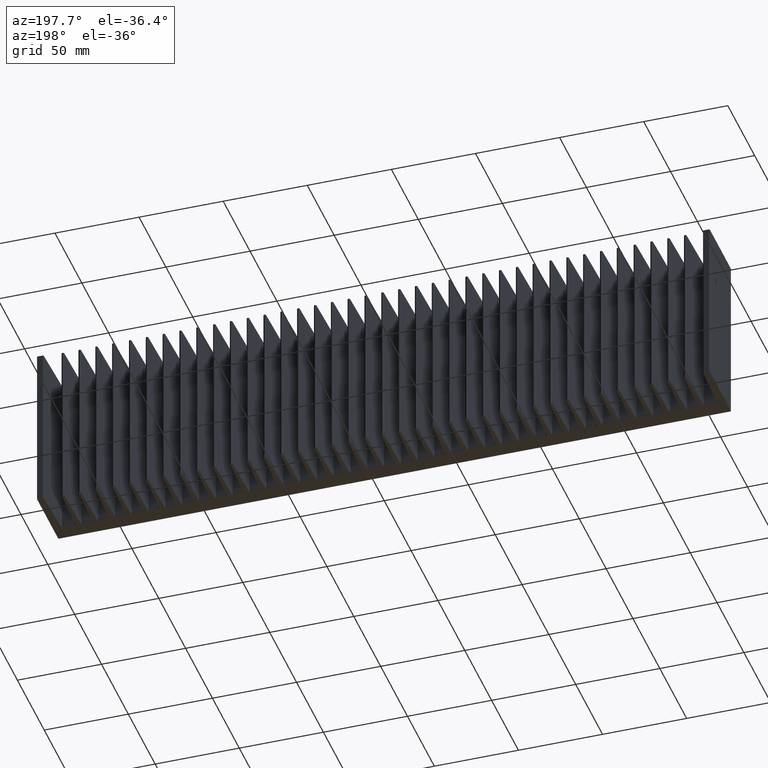
[diagram: clean part render]
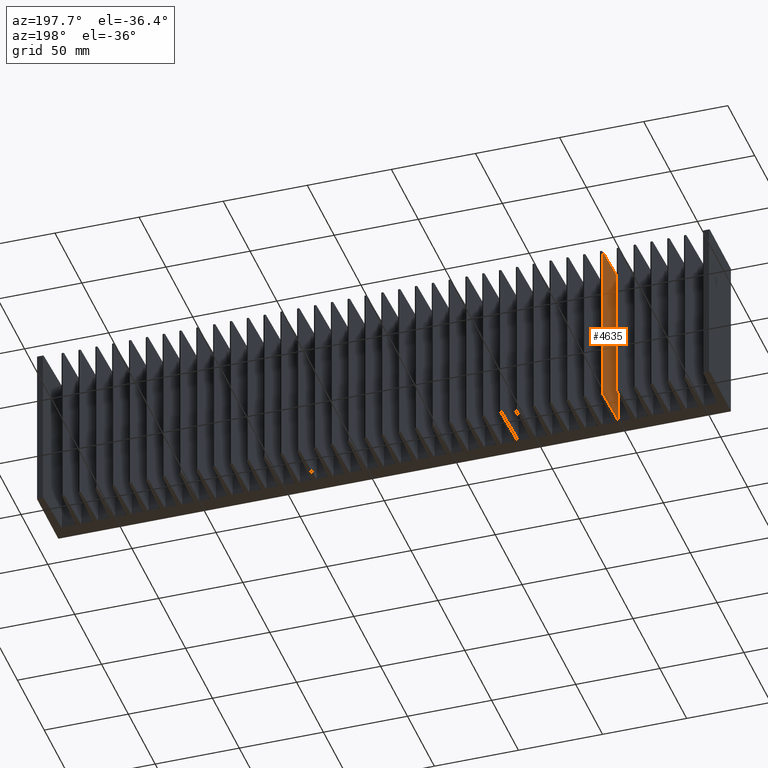
[diagram: same view with one face highlighted and labeled with its STEP entity id]
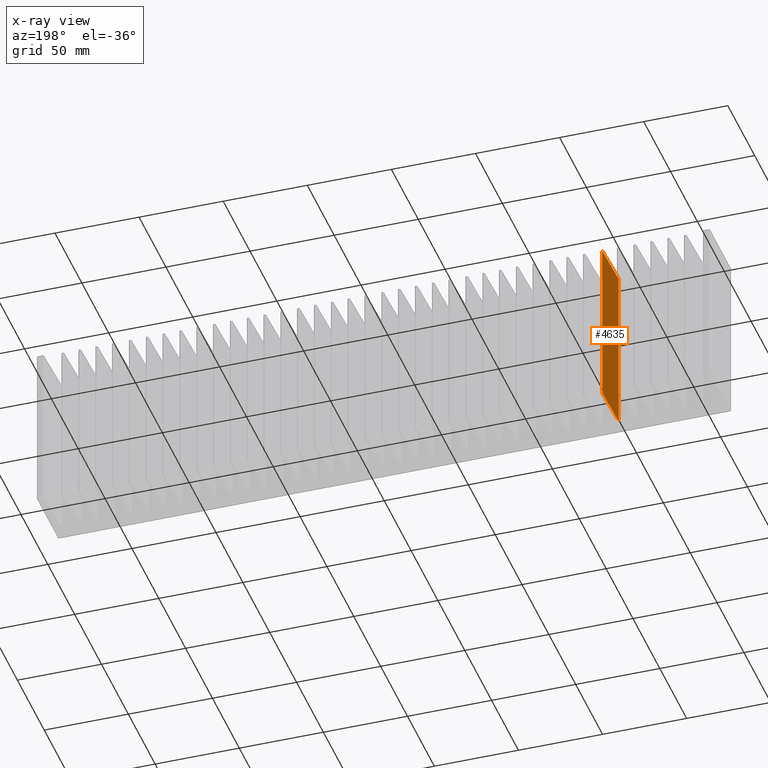
[diagram: x-ray of the same camera — body ghosted, the highlighted face saturated]
A machine part, auxiliary view. The second image highlights one B-rep face of the part: STEP entity #4635.
The next image is the same camera in x-ray: the body ghosted, the highlighted face saturated — about 0% of this face is hidden behind the body in this view.
In plain terms, the highlighted planar face has unit normal (0.9997, -0.0258, 0).
Its self-contained STEP definition (entity closure, byte-faithful):
#107 = DIRECTION ( 'NONE',  ( -0.02580036738941401259, -0.9996671151151123036, -0.000000000000000000 ) ) ;
#654 = CARTESIAN_POINT ( 'NONE',  ( 102.9786726045177971, 174.0035759821427916, 100.0000000000000000 ) ) ;
#1254 = AXIS2_PLACEMENT_3D ( 'NONE', #5030, #1805, #5197 ) ;
#1276 = ORIENTED_EDGE ( 'NONE', *, *, #7212, .F. ) ;
#1340 = VERTEX_POINT ( 'NONE', #654 ) ;
#1805 = DIRECTION ( 'NONE',  ( 0.9996671151151123036, -0.02580036738941401606, 0.000000000000000000 ) ) ;
#1814 = LINE ( 'NONE', #5203, #4633 ) ;
#2156 = ORIENTED_EDGE ( 'NONE', *, *, #8275, .T. ) ;
#2631 = LINE ( 'NONE', #5224, #3127 ) ;
#3108 = LINE ( 'NONE', #6222, #4780 ) ;
#3127 = VECTOR ( 'NONE', #5821, 1000.000000000000000 ) ;
#3296 = VECTOR ( 'NONE', #107, 1000.000000000000114 ) ;
#3480 = ORIENTED_EDGE ( 'NONE', *, *, #6182, .T. ) ;
#3921 = VERTEX_POINT ( 'NONE', #5223 ) ;
#4068 = LINE ( 'NONE', #7898, #3296 ) ;
#4100 = VERTEX_POINT ( 'NONE', #8008 ) ;
#4554 = PLANE ( 'NONE',  #1254 ) ;
#4596 = ORIENTED_EDGE ( 'NONE', *, *, #5713, .F. ) ;
#4633 = VECTOR ( 'NONE', #8409, 1000.000000000000114 ) ;
#4635 = ADVANCED_FACE ( 'NONE', ( #5792 ), #4554, .F. ) ;
#4780 = VECTOR ( 'NONE', #6979, 1000.000000000000000 ) ;
#5030 = CARTESIAN_POINT ( 'NONE',  ( 102.9786726045177971, 174.0035759821427916, 100.0000000000000000 ) ) ;
#5197 = DIRECTION ( 'NONE',  ( 0.02580036738941401606, 0.9996671151151123036, 0.000000000000000000 ) ) ;
#5203 = CARTESIAN_POINT ( 'NONE',  ( 102.9786726045177971, 174.0035759821427916, 100.0000000000000000 ) ) ;
#5223 = CARTESIAN_POINT ( 'NONE',  ( 103.6957035620411887, 201.7858264414805944, 0.000000000000000000 ) ) ;
#5224 = CARTESIAN_POINT ( 'NONE',  ( 103.6957035620411887, 201.7858264414805944, 100.0000000000000000 ) ) ;
#5713 = EDGE_CURVE ( 'NONE', #4100, #1340, #1814, .T. ) ;
#5792 = FACE_OUTER_BOUND ( 'NONE', #7858, .T. ) ;
#5821 = DIRECTION ( 'NONE',  ( -0.000000000000000000, -0.000000000000000000, -1.000000000000000000 ) ) ;
#6046 = VERTEX_POINT ( 'NONE', #7675 ) ;
#6182 = EDGE_CURVE ( 'NONE', #4100, #3921, #2631, .T. ) ;
#6222 = CARTESIAN_POINT ( 'NONE',  ( 102.9786726045177971, 174.0035759821427916, 100.0000000000000000 ) ) ;
#6979 = DIRECTION ( 'NONE',  ( -0.000000000000000000, -0.000000000000000000, -1.000000000000000000 ) ) ;
#7212 = EDGE_CURVE ( 'NONE', #1340, #6046, #3108, .T. ) ;
#7675 = CARTESIAN_POINT ( 'NONE',  ( 102.9786726045177971, 174.0035759821427916, 0.000000000000000000 ) ) ;
#7858 = EDGE_LOOP ( 'NONE', ( #2156, #1276, #4596, #3480 ) ) ;
#7898 = CARTESIAN_POINT ( 'NONE',  ( 102.9786726045177971, 174.0035759821427916, 0.000000000000000000 ) ) ;
#8008 = CARTESIAN_POINT ( 'NONE',  ( 103.6957035620411887, 201.7858264414805944, 100.0000000000000000 ) ) ;
#8275 = EDGE_CURVE ( 'NONE', #3921, #6046, #4068, .T. ) ;
#8409 = DIRECTION ( 'NONE',  ( -0.02580036738941401259, -0.9996671151151123036, -0.000000000000000000 ) ) ;